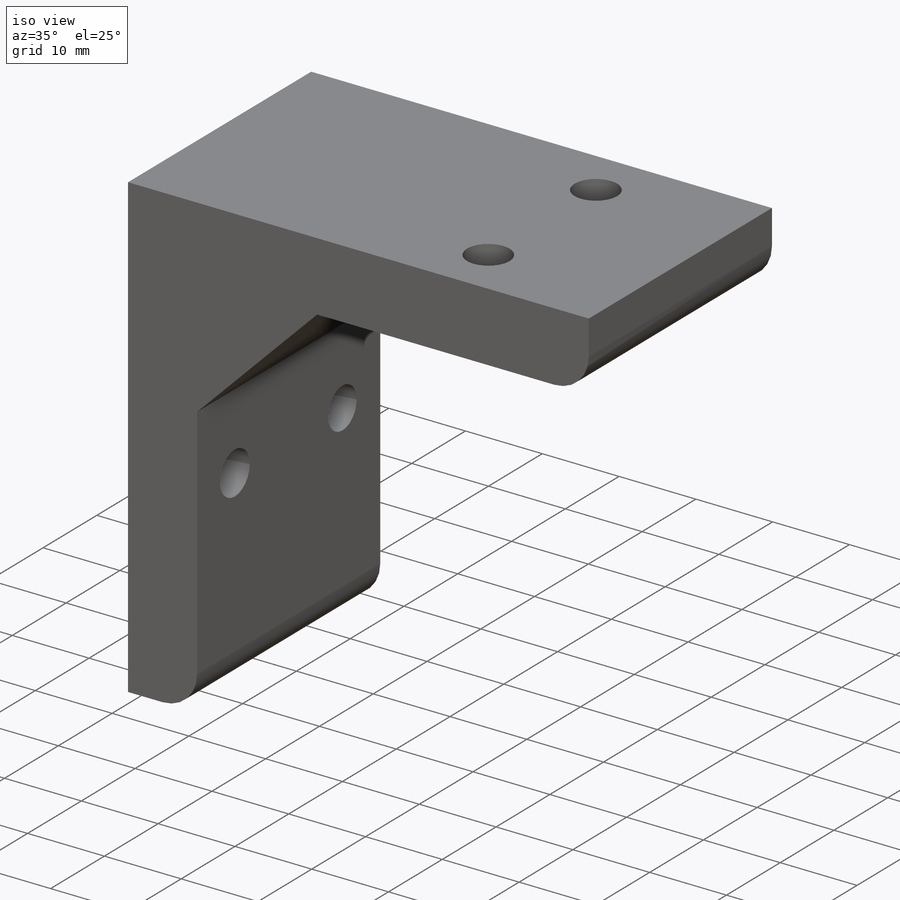
[diagram: iso view]
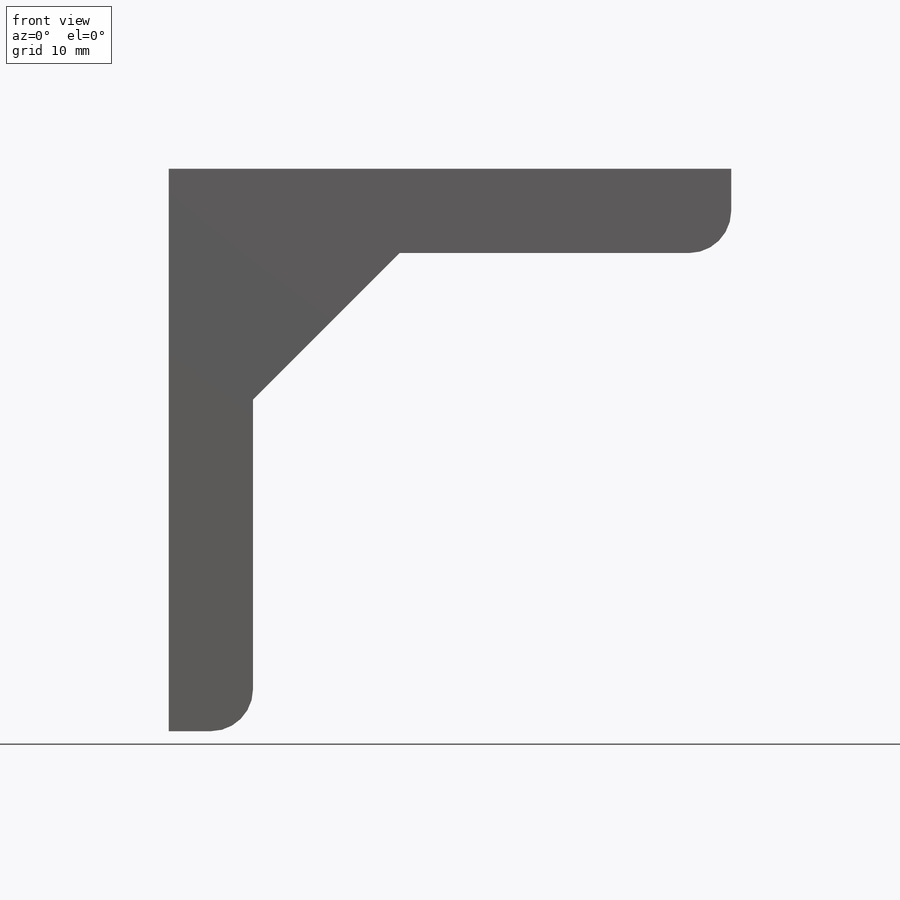
[diagram: front view]
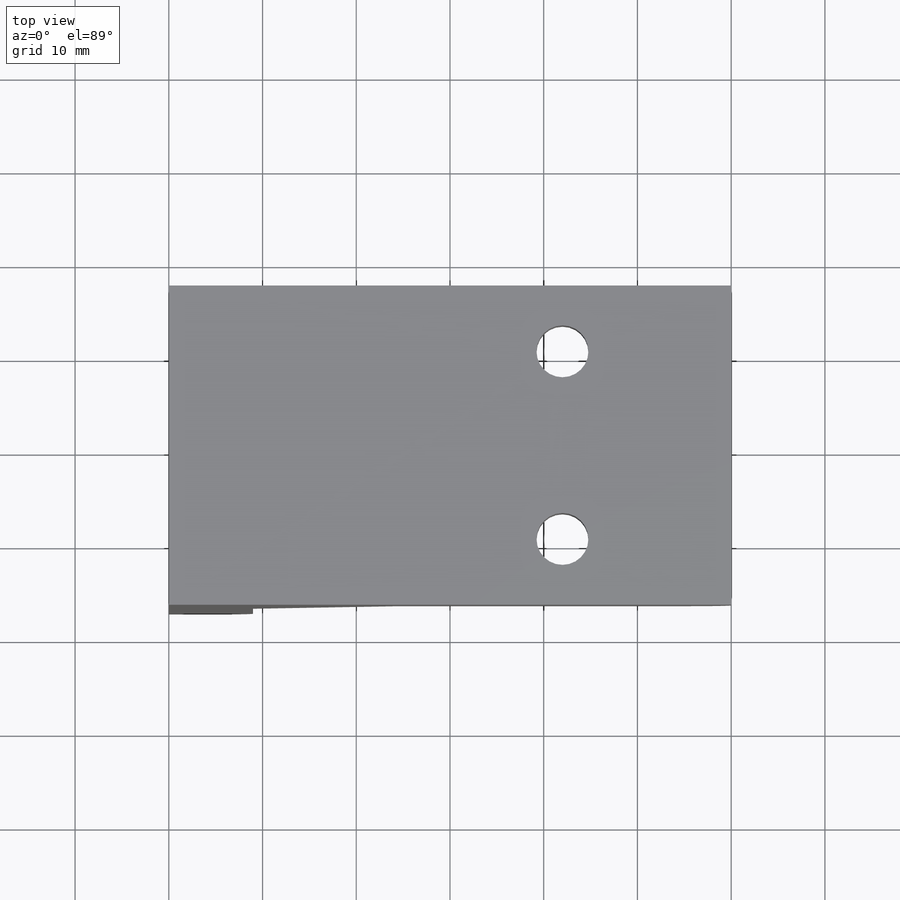
[diagram: top view]
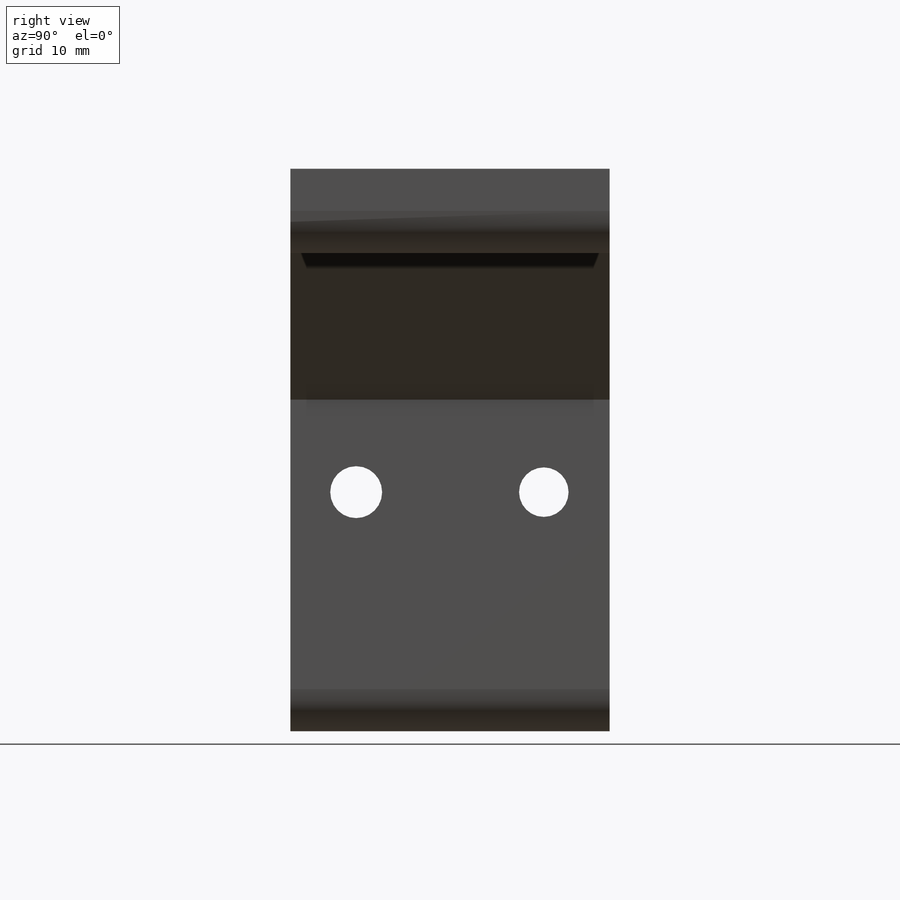
[diagram: right view]
SOLIDWORKS PART (.sldprt)
format: sldprt  version: not decoded by parser v0  size: 203,776 bytes
history: native  units: mm
features: sketch x6, extrude x3, cut_extrude x2, material x1, fillet x1 (+12 scaffold rows collapsed)
feature tree (25):
  scaffold x12  (default folders/planes/origin — collapsed)
  material  "Material <not specified>"
  sketch  "Sketch1"  dims[D1=34.0614mm D2=60.0mm]
  extrude  "Boss-Extrude1"  Depth=8.9916mm
  sketch  "Sketch2"  dims[D1=8.9916mm]
  extrude  "Boss-Extrude2"  Depth=51.0084mm
  sketch  "Sketch3"
  sketch  "Sketch5"  dims[D3=5.5372mm D4=5.2832mm D1=7.0231mm D2=7.0231mm]
  cut_extrude  "Cut-Extrude2"  [1 undecoded]
  sketch  "Sketch6"  dims[D4=5.5372mm D5=5.5372mm D1=~18.004282mm D2=7.0231mm D3=7.0231mm]
  cut_extrude  "Cut-Extrude3"  [1 undecoded]
  sketch  "Sketch7"
  extrude  "Boss-Extrude3"  [1 undecoded]
  fillet  "Fillet1"  Radius=4.4958mm
decode coverage: 7 of 12 modeling features carry decoded parameters
note: ~ marks probable driven/reference dimensions
note: 3 parameter values undecoded
summary: no parameter record found for 3 features
note: suppression state not decoded; provenance and decode notes live in map.json
